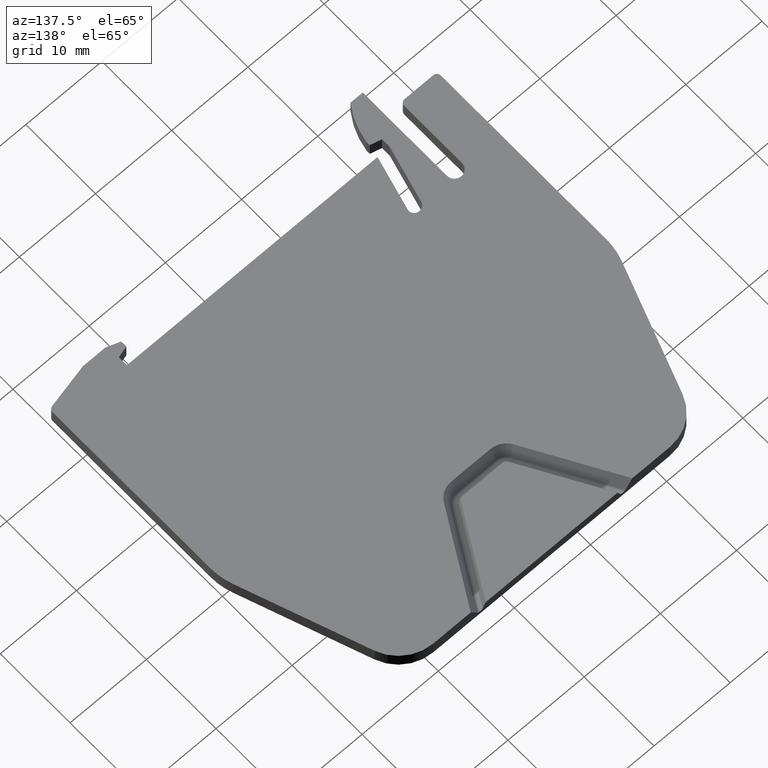
[diagram: clean part render]
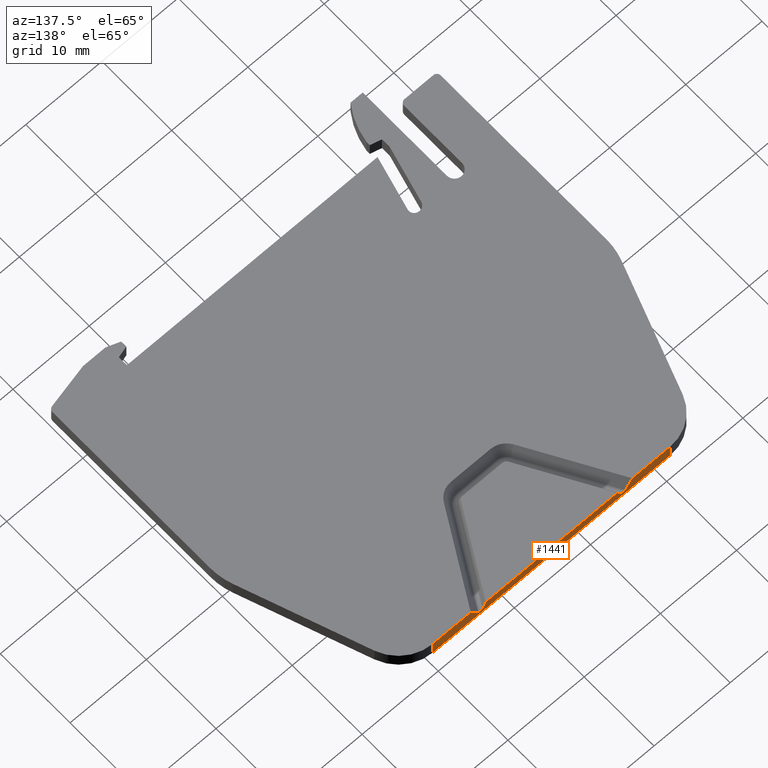
[diagram: same view with one face highlighted and labeled with its STEP entity id]
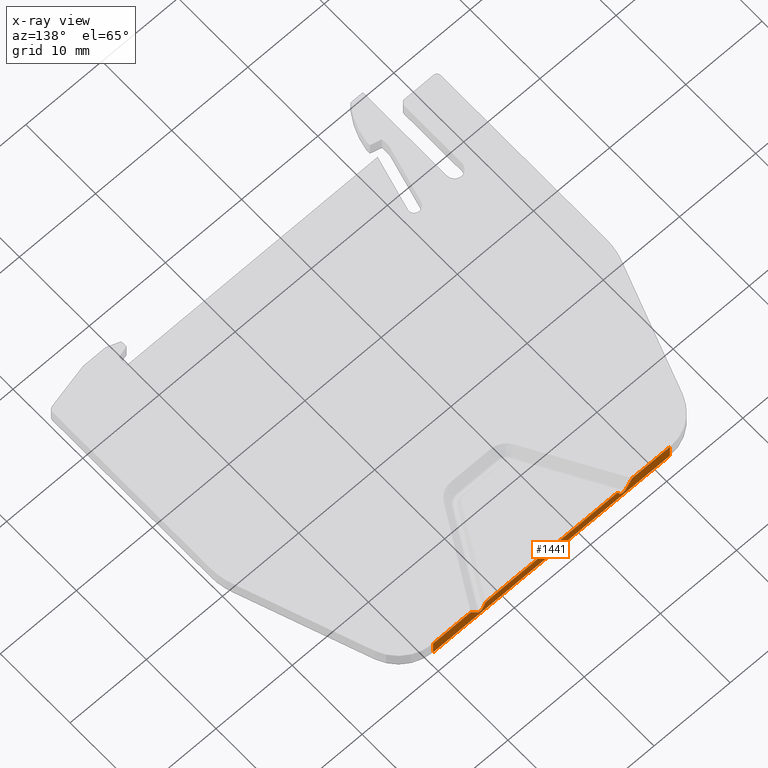
[diagram: x-ray of the same camera — body ghosted, the highlighted face saturated]
A machine part, auxiliary view. The second image highlights one B-rep face of the part: STEP entity #1441.
The next image is the same camera in x-ray: the body ghosted, the highlighted face saturated — about 0% of this face is hidden behind the body in this view.
In plain terms, the highlighted planar face has unit normal (0, -1, 0).
Its self-contained STEP definition (entity closure, byte-faithful):
#1 = VECTOR ( 'NONE', #822, 1000.000000000000000 ) ;
#11 = VECTOR ( 'NONE', #1051, 1000.000000000000000 ) ;
#20 = VECTOR ( 'NONE', #913, 1000.000000000000100 ) ;
#34 = VECTOR ( 'NONE', #979, 1000.000000000000000 ) ;
#65 = VECTOR ( 'NONE', #923, 1000.000000000000000 ) ;
#79 = VECTOR ( 'NONE', #1142, 1000.000000000000000 ) ;
#93 = VECTOR ( 'NONE', #1064, 1000.000000000000000 ) ;
#125 = VECTOR ( 'NONE', #1126, 999.9999999999998900 ) ;
#163 = VECTOR ( 'NONE', #1535, 1000.000000000000000 ) ;
#175 = VECTOR ( 'NONE', #1199, 1000.000000000000000 ) ;
#183 = VECTOR ( 'NONE', #1543, 1000.000000000000000 ) ;
#188 = VECTOR ( 'NONE', #1202, 1000.000000000000000 ) ;
#191 = AXIS2_PLACEMENT_3D ( 'NONE', #1710, #1752, #1704 ) ;
#279 = CARTESIAN_POINT ( 'NONE',  ( 1783.501033155705300, 738.5609287200073800, 0.6500000000000362200 ) ) ;
#318 = VERTEX_POINT ( 'NONE', #759 ) ;
#320 = VERTEX_POINT ( 'NONE', #279 ) ;
#332 = VERTEX_POINT ( 'NONE', #773 ) ;
#336 = EDGE_LOOP ( 'NONE', ( #664, #655, #652, #668, #642, #691, #682, #635, #628, #630, #636, #680, #654, #640, #649, #666 ) ) ;
#350 = VERTEX_POINT ( 'NONE', #760 ) ;
#351 = VERTEX_POINT ( 'NONE', #787 ) ;
#354 = VERTEX_POINT ( 'NONE', #790 ) ;
#359 = VERTEX_POINT ( 'NONE', #761 ) ;
#361 = VERTEX_POINT ( 'NONE', #762 ) ;
#369 = VERTEX_POINT ( 'NONE', #768 ) ;
#380 = VERTEX_POINT ( 'NONE', #797 ) ;
#381 = VERTEX_POINT ( 'NONE', #781 ) ;
#387 = VERTEX_POINT ( 'NONE', #774 ) ;
#397 = VERTEX_POINT ( 'NONE', #778 ) ;
#401 = VERTEX_POINT ( 'NONE', #786 ) ;
#421 = VERTEX_POINT ( 'NONE', #862 ) ;
#425 = VERTEX_POINT ( 'NONE', #864 ) ;
#628 = ORIENTED_EDGE ( 'NONE', *, *, #1241, .T. ) ;
#630 = ORIENTED_EDGE ( 'NONE', *, *, #1313, .F. ) ;
#635 = ORIENTED_EDGE ( 'NONE', *, *, #1276, .F. ) ;
#636 = ORIENTED_EDGE ( 'NONE', *, *, #1307, .F. ) ;
#640 = ORIENTED_EDGE ( 'NONE', *, *, #1395, .F. ) ;
#642 = ORIENTED_EDGE ( 'NONE', *, *, #1258, .F. ) ;
#649 = ORIENTED_EDGE ( 'NONE', *, *, #1386, .F. ) ;
#652 = ORIENTED_EDGE ( 'NONE', *, *, #1272, .T. ) ;
#654 = ORIENTED_EDGE ( 'NONE', *, *, #1347, .T. ) ;
#655 = ORIENTED_EDGE ( 'NONE', *, *, #1237, .F. ) ;
#664 = ORIENTED_EDGE ( 'NONE', *, *, #1294, .T. ) ;
#666 = ORIENTED_EDGE ( 'NONE', *, *, #1284, .F. ) ;
#668 = ORIENTED_EDGE ( 'NONE', *, *, #1319, .F. ) ;
#680 = ORIENTED_EDGE ( 'NONE', *, *, #1346, .F. ) ;
#682 = ORIENTED_EDGE ( 'NONE', *, *, #1257, .T. ) ;
#691 = ORIENTED_EDGE ( 'NONE', *, *, #1247, .F. ) ;
#759 = CARTESIAN_POINT ( 'NONE',  ( 1764.456672194511200, 738.5609287200070400, 0.5000000000000282000 ) ) ;
#760 = CARTESIAN_POINT ( 'NONE',  ( 1782.434696606089800, 738.5609287200069300, 1.499999999999959100 ) ) ;
#761 = CARTESIAN_POINT ( 'NONE',  ( 1764.100098830572300, 738.5609287200075000, 0.6500000000004639800 ) ) ;
#762 = CARTESIAN_POINT ( 'NONE',  ( 1764.400101659281500, 738.5609287200070400, 0.5000000000000282000 ) ) ;
#768 = CARTESIAN_POINT ( 'NONE',  ( 1782.824415516008500, 738.5609287200070400, 0.6851949702886738200 ) ) ;
#773 = CARTESIAN_POINT ( 'NONE',  ( 1764.776716470267000, 738.5609287200070400, 0.6851949702904458500 ) ) ;
#774 = CARTESIAN_POINT ( 'NONE',  ( 1789.343152928015100, 738.5609287200070400, 0.0000000000000000000 ) ) ;
#778 = CARTESIAN_POINT ( 'NONE',  ( 1758.257985081626900, 738.5609287200089700, 2.000000000000000000 ) ) ;
#781 = CARTESIAN_POINT ( 'NONE',  ( 1784.401041641834600, 738.5609287200072700, 2.000000000000095900 ) ) ;
#786 = CARTESIAN_POINT ( 'NONE',  ( 1758.257985081626900, 738.5609287200089700, 0.0000000000000000000 ) ) ;
#787 = CARTESIAN_POINT ( 'NONE',  ( 1783.201030326995600, 738.5609287200070400, 0.5000000000000698300 ) ) ;
#790 = CARTESIAN_POINT ( 'NONE',  ( 1765.166435380185000, 738.5609287200069300, 1.499999999999967400 ) ) ;
#797 = CARTESIAN_POINT ( 'NONE',  ( 1783.144459791763200, 738.5609287200070400, 0.5000000000000698300 ) ) ;
#822 = DIRECTION ( 'NONE',  ( -1.000000000000000000, -0.0000000000000000000, 0.0000000000000000000 ) ) ;
#837 = CARTESIAN_POINT ( 'NONE',  ( 1783.201030326995600, 738.5609287200070400, 0.5000000000000698300 ) ) ;
#840 = CARTESIAN_POINT ( 'NONE',  ( 1776.395688422009900, 738.5609287200070400, 0.5000000000000000000 ) ) ;
#851 = LINE ( 'NONE', #840, #1 ) ;
#862 = CARTESIAN_POINT ( 'NONE',  ( 1789.343152928015100, 738.5609287200070400, 2.000000000000000000 ) ) ;
#864 = CARTESIAN_POINT ( 'NONE',  ( 1763.200090344441600, 738.5609287200076100, 2.000000000000742500 ) ) ;
#885 = CARTESIAN_POINT ( 'NONE',  ( 1783.327826441792200, 738.5609287200071500, 0.4999999999999523200 ) ) ;
#887 = CARTESIAN_POINT ( 'NONE',  ( 1782.824415516008700, 738.5609287200072700, 0.6851949702902364600 ) ) ;
#904 = CARTESIAN_POINT ( 'NONE',  ( 1782.824415516008500, 738.5609287200070400, 0.6851949702886738200 ) ) ;
#907 = CARTESIAN_POINT ( 'NONE',  ( 1783.437635098307300, 738.5609287200071500, 0.5549038105675702100 ) ) ;
#909 = CARTESIAN_POINT ( 'NONE',  ( 1783.501033155705300, 738.5609287200073800, 0.6500000000000362200 ) ) ;
#911 = LINE ( 'NONE', #887, #20 ) ;
#913 = DIRECTION ( 'NONE',  ( -0.4314821215280823000, -2.458394364975890900E-013, 0.9021214878283440000 ) ) ;
#923 = DIRECTION ( 'NONE',  ( -1.000000000000000000, -0.0000000000000000000, -0.0000000000000000000 ) ) ;
#933 = CARTESIAN_POINT ( 'NONE',  ( 1782.999915006783300, 738.5609287200069300, 0.4999999999998524500 ) ) ;
#947 = CARTESIAN_POINT ( 'NONE',  ( 1789.343152928030100, 738.5609287200070400, 1.499999999999932100 ) ) ;
#950 = CARTESIAN_POINT ( 'NONE',  ( 1783.144459791763200, 738.5609287200070400, 0.5000000000000698300 ) ) ;
#956 = LINE ( 'NONE', #947, #65 ) ;
#964 = CARTESIAN_POINT ( 'NONE',  ( 1782.879730410455300, 738.5609287200069300, 0.5695453236696418300 ) ) ;
#973 = CARTESIAN_POINT ( 'NONE',  ( 1764.776716470267000, 738.5609287200070400, 0.6851949702904458500 ) ) ;
#976 = CARTESIAN_POINT ( 'NONE',  ( 1764.601216979491900, 738.5609287200070400, 0.4999999999998770400 ) ) ;
#977 = CARTESIAN_POINT ( 'NONE',  ( 1776.395688422009900, 738.5609287200070400, 0.5000000000000000000 ) ) ;
#979 = DIRECTION ( 'NONE',  ( -1.000000000000000000, -0.0000000000000000000, 0.0000000000000000000 ) ) ;
#981 = CARTESIAN_POINT ( 'NONE',  ( 1764.721401575820400, 738.5609287200070400, 0.5695453236704903800 ) ) ;
#1003 = LINE ( 'NONE', #977, #34 ) ;
#1005 = CARTESIAN_POINT ( 'NONE',  ( 1764.456672194511200, 738.5609287200070400, 0.5000000000000282000 ) ) ;
#1020 = CARTESIAN_POINT ( 'NONE',  ( 1764.100098830572300, 738.5609287200075000, 0.6500000000004639800 ) ) ;
#1026 = CARTESIAN_POINT ( 'NONE',  ( 1764.163496887970000, 738.5609287200070400, 0.5549038105678771900 ) ) ;
#1042 = CARTESIAN_POINT ( 'NONE',  ( 1765.822677669071300, 738.5609287200078400, -1.933843894600666200 ) ) ;
#1046 = LINE ( 'NONE', #1042, #11 ) ;
#1051 = DIRECTION ( 'NONE',  ( -0.5547038171766520700, -0.0000000000000000000, 0.8320478803588476900 ) ) ;
#1053 = CARTESIAN_POINT ( 'NONE',  ( 1764.273305544484900, 738.5609287200070400, 0.5000000000001080200 ) ) ;
#1054 = CARTESIAN_POINT ( 'NONE',  ( 1764.400101659281500, 738.5609287200070400, 0.5000000000000282000 ) ) ;
#1064 = DIRECTION ( 'NONE',  ( -1.000000000000000000, -0.0000000000000000000, -0.0000000000000000000 ) ) ;
#1082 = CARTESIAN_POINT ( 'NONE',  ( 1789.343152928030100, 738.5609287200070400, 2.000000000000000000 ) ) ;
#1083 = LINE ( 'NONE', #1082, #93 ) ;
#1105 = CARTESIAN_POINT ( 'NONE',  ( 1765.166435380185000, 738.5609287200070400, 1.499999999999975400 ) ) ;
#1111 = LINE ( 'NONE', #1105, #125 ) ;
#1115 = CARTESIAN_POINT ( 'NONE',  ( 1781.778454317207700, 738.5609287200076100, -1.933843894599803100 ) ) ;
#1126 = DIRECTION ( 'NONE',  ( -0.4314821215279099900, 1.229197182488154700E-013, -0.9021214878284264900 ) ) ;
#1132 = LINE ( 'NONE', #1115, #79 ) ;
#1142 = DIRECTION ( 'NONE',  ( -0.5547038171766273100, -0.0000000000000000000, -0.8320478803588641200 ) ) ;
#1197 = LINE ( 'NONE', #1209, #188 ) ;
#1199 = DIRECTION ( 'NONE',  ( -0.0000000000000000000, 0.0000000000000000000, 1.000000000000000000 ) ) ;
#1202 = DIRECTION ( 'NONE',  ( -1.000000000000000000, -0.0000000000000000000, 0.0000000000000000000 ) ) ;
#1209 = CARTESIAN_POINT ( 'NONE',  ( 1799.300570147185500, 738.5609287200070400, 0.0000000000000000000 ) ) ;
#1217 = LINE ( 'NONE', #1218, #175 ) ;
#1218 = CARTESIAN_POINT ( 'NONE',  ( 1789.343152928020100, 738.5609287200070400, 2.000000000000000000 ) ) ;
#1231 =( BOUNDED_CURVE ( )  B_SPLINE_CURVE ( 3, ( #1005, #976, #981, #973 ),
 .UNSPECIFIED., .F., .T. ) 
 B_SPLINE_CURVE_WITH_KNOTS ( ( 4, 4 ),
 ( 4.712388980383407100, 5.890486225480335800 ),
 .UNSPECIFIED. ) 
 CURVE ( )  GEOMETRIC_REPRESENTATION_ITEM ( )  RATIONAL_B_SPLINE_CURVE ( ( 1.000000000000000000, 0.8876464082015568200, 0.8876464082015568200, 1.000000000000000000 ) ) 
 REPRESENTATION_ITEM ( '' )  );
#1232 =( BOUNDED_CURVE ( )  B_SPLINE_CURVE ( 3, ( #837, #885, #907, #909 ),
 .UNSPECIFIED., .F., .F. ) 
 B_SPLINE_CURVE_WITH_KNOTS ( ( 4, 4 ),
 ( 1.570796326793614700, 2.617993877991077900 ),
 .UNSPECIFIED. ) 
 CURVE ( )  GEOMETRIC_REPRESENTATION_ITEM ( )  RATIONAL_B_SPLINE_CURVE ( ( 1.000000000000000000, 0.9106836025228148800, 0.9106836025228148800, 1.000000000000000000 ) ) 
 REPRESENTATION_ITEM ( '' )  );
#1234 =( BOUNDED_CURVE ( )  B_SPLINE_CURVE ( 3, ( #904, #964, #933, #950 ),
 .UNSPECIFIED., .F., .F. ) 
 B_SPLINE_CURVE_WITH_KNOTS ( ( 4, 4 ),
 ( 3.534291735295960600, 4.712388980386612600 ),
 .UNSPECIFIED. ) 
 CURVE ( )  GEOMETRIC_REPRESENTATION_ITEM ( )  RATIONAL_B_SPLINE_CURVE ( ( 1.000000000000000000, 0.8876464082027191200, 0.8876464082027191200, 1.000000000000000000 ) ) 
 REPRESENTATION_ITEM ( '' )  );
#1235 =( BOUNDED_CURVE ( )  B_SPLINE_CURVE ( 3, ( #1020, #1026, #1053, #1054 ),
 .UNSPECIFIED., .F., .T. ) 
 B_SPLINE_CURVE_WITH_KNOTS ( ( 4, 4 ),
 ( 0.5235987755971878200, 1.570796326794255700 ),
 .UNSPECIFIED. ) 
 CURVE ( )  GEOMETRIC_REPRESENTATION_ITEM ( )  RATIONAL_B_SPLINE_CURVE ( ( 1.000000000000000000, 0.9106836025228807200, 0.9106836025228807200, 1.000000000000000000 ) ) 
 REPRESENTATION_ITEM ( '' )  );
#1237 = EDGE_CURVE ( 'NONE', #318, #361, #851, .T. ) ;
#1241 = EDGE_CURVE ( 'NONE', #351, #320, #1232, .T. ) ;
#1247 = EDGE_CURVE ( 'NONE', #369, #350, #911, .T. ) ;
#1257 = EDGE_CURVE ( 'NONE', #369, #380, #1234, .T. ) ;
#1258 = EDGE_CURVE ( 'NONE', #350, #354, #956, .T. ) ;
#1272 = EDGE_CURVE ( 'NONE', #318, #332, #1231, .T. ) ;
#1276 = EDGE_CURVE ( 'NONE', #351, #380, #1003, .T. ) ;
#1284 = EDGE_CURVE ( 'NONE', #359, #425, #1046, .T. ) ;
#1294 = EDGE_CURVE ( 'NONE', #359, #361, #1235, .T. ) ;
#1307 = EDGE_CURVE ( 'NONE', #421, #381, #1083, .T. ) ;
#1313 = EDGE_CURVE ( 'NONE', #381, #320, #1132, .T. ) ;
#1319 = EDGE_CURVE ( 'NONE', #354, #332, #1111, .T. ) ;
#1346 = EDGE_CURVE ( 'NONE', #387, #421, #1217, .T. ) ;
#1347 = EDGE_CURVE ( 'NONE', #387, #401, #1197, .T. ) ;
#1386 = EDGE_CURVE ( 'NONE', #425, #397, #1492, .T. ) ;
#1395 = EDGE_CURVE ( 'NONE', #397, #401, #1526, .T. ) ;
#1441 = ADVANCED_FACE ( 'NONE', ( #1753 ), #1731, .F. ) ;
#1492 = LINE ( 'NONE', #1529, #183 ) ;
#1526 = LINE ( 'NONE', #1549, #163 ) ;
#1529 = CARTESIAN_POINT ( 'NONE',  ( 1789.343152928030100, 738.5609287200070400, 2.000000000000560000 ) ) ;
#1535 = DIRECTION ( 'NONE',  ( 0.0000000000000000000, 0.0000000000000000000, -1.000000000000000000 ) ) ;
#1543 = DIRECTION ( 'NONE',  ( -1.000000000000000000, -0.0000000000000000000, -0.0000000000000000000 ) ) ;
#1549 = CARTESIAN_POINT ( 'NONE',  ( 1758.257982796943500, 738.5609287200111300, 2.000000000000000000 ) ) ;
#1704 = DIRECTION ( 'NONE',  ( 0.0000000000000000000, -0.0000000000000000000, -1.000000000000000000 ) ) ;
#1710 = CARTESIAN_POINT ( 'NONE',  ( 1789.343152928030100, 738.5609287200070400, 2.000000000000000000 ) ) ;
#1731 = PLANE ( 'NONE',  #191 ) ;
#1752 = DIRECTION ( 'NONE',  ( 0.0000000000000000000, -1.000000000000000000, 0.0000000000000000000 ) ) ;
#1753 = FACE_OUTER_BOUND ( 'NONE', #336, .T. ) ;